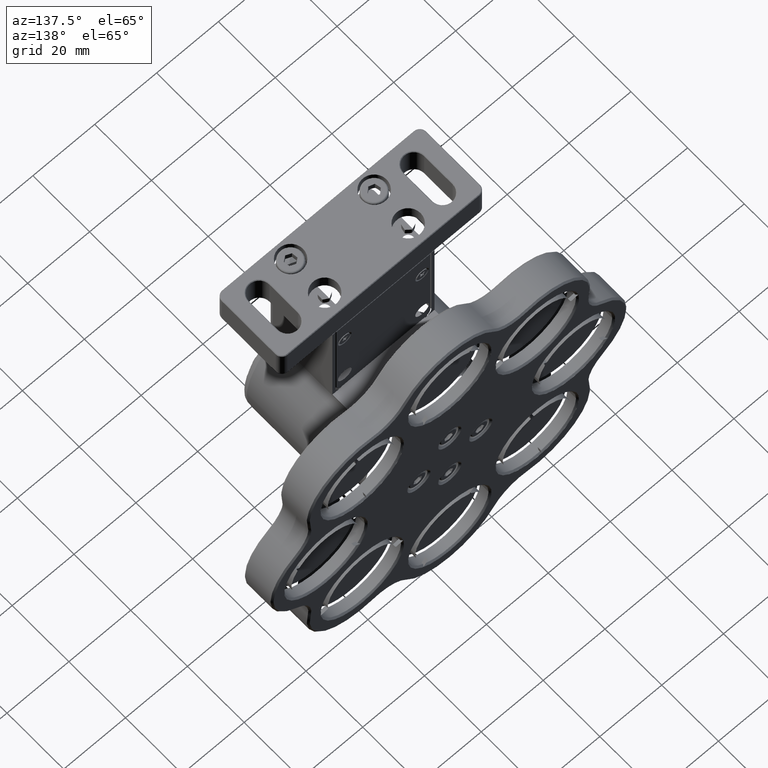
[diagram: clean part render]
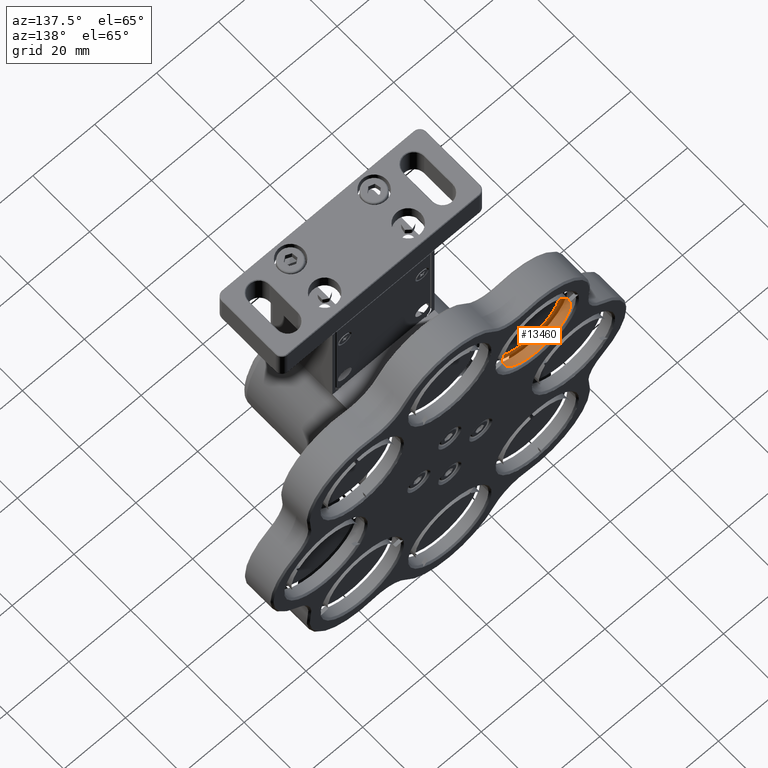
[diagram: same view with one face highlighted and labeled with its STEP entity id]
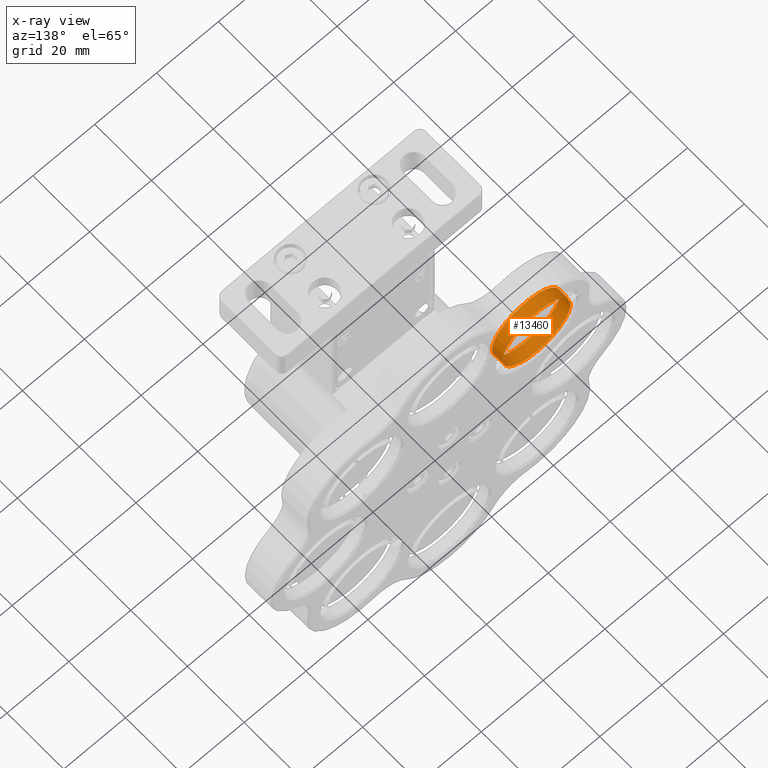
[diagram: x-ray of the same camera — body ghosted, the highlighted face saturated]
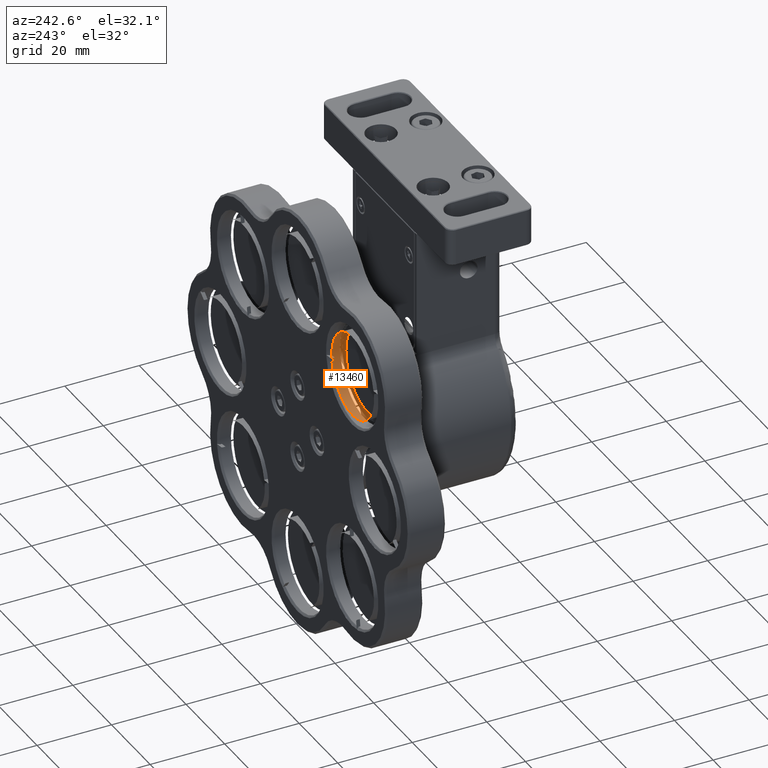
[diagram: same view with one face highlighted and labeled with its STEP entity id]
A machine part, auxiliary view. The second image highlights one B-rep face of the part: STEP entity #13460.
The next image is the same camera in x-ray: the body ghosted, the highlighted face saturated — about 0% of this face is hidden behind the body in this view.
A second angle (auxiliary view) of the same face is appended — the face is thin or edge-on in the first view.
In plain terms, the highlighted cylindrical surface (bore or boss wall) has radius 11 mm, axis along (0, -1, 0).
Its self-contained STEP definition (entity closure, byte-faithful):
#302 = DIRECTION ( 'NONE',  ( 1.000000000000000000, 0.000000000000000000, 0.000000000000000000 ) ) ;
#724 = DIRECTION ( 'NONE',  ( 1.000000000000000000, 0.000000000000000000, -1.640102195468973594E-14 ) ) ;
#807 = AXIS2_PLACEMENT_3D ( 'NONE', #7515, #13528, #302 ) ;
#860 = CARTESIAN_POINT ( 'NONE',  ( -63.81424842629530758, 41.07911804988290072, 99.31516037208442071 ) ) ;
#1036 = VERTEX_POINT ( 'NONE', #10683 ) ;
#1058 = VERTEX_POINT ( 'NONE', #19095 ) ;
#1178 = CARTESIAN_POINT ( 'NONE',  ( -63.81424842629530758, 41.87911804988289788, 99.31516037208443493 ) ) ;
#1454 = EDGE_CURVE ( 'NONE', #11537, #6469, #8971, .T. ) ;
#1933 = ORIENTED_EDGE ( 'NONE', *, *, #13445, .F. ) ;
#2015 = DIRECTION ( 'NONE',  ( 1.000000000000000000, 0.000000000000000000, 0.000000000000000000 ) ) ;
#2439 = EDGE_CURVE ( 'NONE', #18288, #2895, #13302, .T. ) ;
#2479 = CARTESIAN_POINT ( 'NONE',  ( -42.04994835338610670, 41.07911804988290072, 96.26307217932709648 ) ) ;
#2895 = VERTEX_POINT ( 'NONE', #2479 ) ;
#3013 = CIRCLE ( 'NONE', #5529, 11.00000000000005151 ) ;
#3555 = EDGE_CURVE ( 'NONE', #2895, #6469, #13325, .T. ) ;
#3655 = CARTESIAN_POINT ( 'NONE',  ( -63.81424842629529337, 42.07911804988289362, 99.31516037208442071 ) ) ;
#4066 = VECTOR ( 'NONE', #18889, 1000.000000000000000 ) ;
#4117 = ORIENTED_EDGE ( 'NONE', *, *, #5814, .F. ) ;
#4286 = CARTESIAN_POINT ( 'NONE',  ( -52.86266097914351292, 42.07911804988290072, 98.28427124740218801 ) ) ;
#4363 = CARTESIAN_POINT ( 'NONE',  ( -42.04994835338609960, 42.07911804988289362, 96.26307217932709648 ) ) ;
#4474 = EDGE_CURVE ( 'NONE', #7899, #8604, #5662, .T. ) ;
#4552 = DIRECTION ( 'NONE',  ( 3.488278094132891133E-29, -1.000000000000000000, 6.044921618677535078E-45 ) ) ;
#4712 = CARTESIAN_POINT ( 'NONE',  ( -63.67537360490091203, 41.07911804988290072, 100.3054703154772795 ) ) ;
#5247 = EDGE_CURVE ( 'NONE', #11537, #7899, #17159, .T. ) ;
#5380 = CARTESIAN_POINT ( 'NONE',  ( -41.91107353199171826, 42.07911804988290072, 97.25338212271995531 ) ) ;
#5529 = AXIS2_PLACEMENT_3D ( 'NONE', #9421, #13961, #6490 ) ;
#5662 = CIRCLE ( 'NONE', #8171, 11.00000000000005151 ) ;
#5666 = FACE_OUTER_BOUND ( 'NONE', #6047, .T. ) ;
#5735 = ORIENTED_EDGE ( 'NONE', *, *, #2439, .F. ) ;
#5800 = CARTESIAN_POINT ( 'NONE',  ( -42.04994835338609960, 41.87911804988289788, 96.26307217932709648 ) ) ;
#5814 = EDGE_CURVE ( 'NONE', #8604, #1036, #8522, .T. ) ;
#6047 = EDGE_LOOP ( 'NONE', ( #6262 ) ) ;
#6262 = ORIENTED_EDGE ( 'NONE', *, *, #11681, .T. ) ;
#6469 = VERTEX_POINT ( 'NONE', #5800 ) ;
#6490 = DIRECTION ( 'NONE',  ( 1.000000000000000000, 0.000000000000000000, 0.000000000000000000 ) ) ;
#6569 = DIRECTION ( 'NONE',  ( -1.505683830593378505E-17, -1.000000000000000000, -1.073696192060440904E-16 ) ) ;
#7006 = AXIS2_PLACEMENT_3D ( 'NONE', #16993, #15506, #2015 ) ;
#7048 = DIRECTION ( 'NONE',  ( 1.000000000000000000, 0.000000000000000000, 0.000000000000000000 ) ) ;
#7515 = CARTESIAN_POINT ( 'NONE',  ( -52.86266097914351292, 41.87911804988289788, 98.28427124740218801 ) ) ;
#7899 = VERTEX_POINT ( 'NONE', #860 ) ;
#8171 = AXIS2_PLACEMENT_3D ( 'NONE', #14208, #9966, #724 ) ;
#8507 = DIRECTION ( 'NONE',  ( 3.488278094132891133E-29, -1.000000000000000000, 6.044921618677535078E-45 ) ) ;
#8522 = LINE ( 'NONE', #14452, #4066 ) ;
#8604 = VERTEX_POINT ( 'NONE', #4712 ) ;
#8650 = DIRECTION ( 'NONE',  ( -1.505683830593379430E-17, -1.000000000000000000, -1.073696192060441644E-16 ) ) ;
#8971 = CIRCLE ( 'NONE', #807, 11.00000000000005151 ) ;
#9421 = CARTESIAN_POINT ( 'NONE',  ( -52.86266097914351292, 38.07911804988290072, 98.28427124740218801 ) ) ;
#9966 = DIRECTION ( 'NONE',  ( -3.488278094132891133E-29, 1.000000000000000000, -6.044921618677535078E-45 ) ) ;
#10683 = CARTESIAN_POINT ( 'NONE',  ( -63.67537360490092624, 41.87911804988289788, 100.3054703154772795 ) ) ;
#10786 = ORIENTED_EDGE ( 'NONE', *, *, #15007, .T. ) ;
#10789 = ORIENTED_EDGE ( 'NONE', *, *, #4474, .F. ) ;
#11058 = ORIENTED_EDGE ( 'NONE', *, *, #5247, .F. ) ;
#11173 = AXIS2_PLACEMENT_3D ( 'NONE', #4286, #8507, #7048 ) ;
#11210 = AXIS2_PLACEMENT_3D ( 'NONE', #13709, #4552, #16583 ) ;
#11537 = VERTEX_POINT ( 'NONE', #1178 ) ;
#11681 = EDGE_CURVE ( 'NONE', #1058, #1058, #3013, .T. ) ;
#11869 = CYLINDRICAL_SURFACE ( 'NONE', #11173, 11.00000000000005151 ) ;
#13302 = CIRCLE ( 'NONE', #7006, 11.00000000000005151 ) ;
#13325 = LINE ( 'NONE', #4363, #15796 ) ;
#13326 = CARTESIAN_POINT ( 'NONE',  ( -41.91107353199171826, 41.87911804988289788, 97.25338212271992688 ) ) ;
#13445 = EDGE_CURVE ( 'NONE', #17691, #18288, #18876, .T. ) ;
#13460 = ADVANCED_FACE ( 'NONE', ( #5666, #19266 ), #11869, .T. ) ;
#13528 = DIRECTION ( 'NONE',  ( 3.488278094132891133E-29, -1.000000000000000000, 6.044921618677535078E-45 ) ) ;
#13709 = CARTESIAN_POINT ( 'NONE',  ( -52.86266097914351292, 41.87911804988289788, 98.28427124740218801 ) ) ;
#13961 = DIRECTION ( 'NONE',  ( -3.488278094132891133E-29, 1.000000000000000000, -6.044921618677535078E-45 ) ) ;
#14208 = CARTESIAN_POINT ( 'NONE',  ( -52.86266097914351292, 41.07911804988290072, 98.28427124740218801 ) ) ;
#14452 = CARTESIAN_POINT ( 'NONE',  ( -63.67537360490092624, 42.07911804988290072, 100.3054703154772795 ) ) ;
#14732 = EDGE_LOOP ( 'NONE', ( #10789, #11058, #17549, #19275, #5735, #1933, #10786, #4117 ) ) ;
#15002 = CIRCLE ( 'NONE', #11210, 11.00000000000005151 ) ;
#15007 = EDGE_CURVE ( 'NONE', #17691, #1036, #15002, .T. ) ;
#15368 = CARTESIAN_POINT ( 'NONE',  ( -41.91107353199171826, 41.07911804988290072, 97.25338212271995531 ) ) ;
#15506 = DIRECTION ( 'NONE',  ( -3.488278094132891133E-29, 1.000000000000000000, -6.044921618677535078E-45 ) ) ;
#15796 = VECTOR ( 'NONE', #17781, 1000.000000000000000 ) ;
#16583 = DIRECTION ( 'NONE',  ( 1.000000000000000000, 0.000000000000000000, 0.000000000000000000 ) ) ;
#16993 = CARTESIAN_POINT ( 'NONE',  ( -52.86266097914351292, 41.07911804988290072, 98.28427124740218801 ) ) ;
#17159 = LINE ( 'NONE', #3655, #18581 ) ;
#17549 = ORIENTED_EDGE ( 'NONE', *, *, #1454, .T. ) ;
#17691 = VERTEX_POINT ( 'NONE', #13326 ) ;
#17781 = DIRECTION ( 'NONE',  ( 1.505683830593379430E-17, 1.000000000000000000, 1.073696192060441644E-16 ) ) ;
#18288 = VERTEX_POINT ( 'NONE', #15368 ) ;
#18581 = VECTOR ( 'NONE', #8650, 1000.000000000000000 ) ;
#18876 = LINE ( 'NONE', #5380, #19373 ) ;
#18889 = DIRECTION ( 'NONE',  ( 1.505683830593378505E-17, 1.000000000000000000, 1.073696192060440904E-16 ) ) ;
#19095 = CARTESIAN_POINT ( 'NONE',  ( -41.86266097914346318, 38.07911804988290072, 98.28427124740218801 ) ) ;
#19266 = FACE_OUTER_BOUND ( 'NONE', #14732, .T. ) ;
#19275 = ORIENTED_EDGE ( 'NONE', *, *, #3555, .F. ) ;
#19373 = VECTOR ( 'NONE', #6569, 1000.000000000000000 ) ;